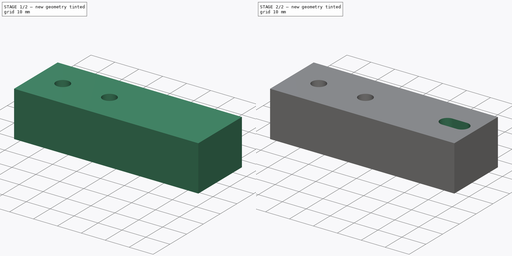
[diagram: build sequence overview — one tinted view per stage of 2, left to right]
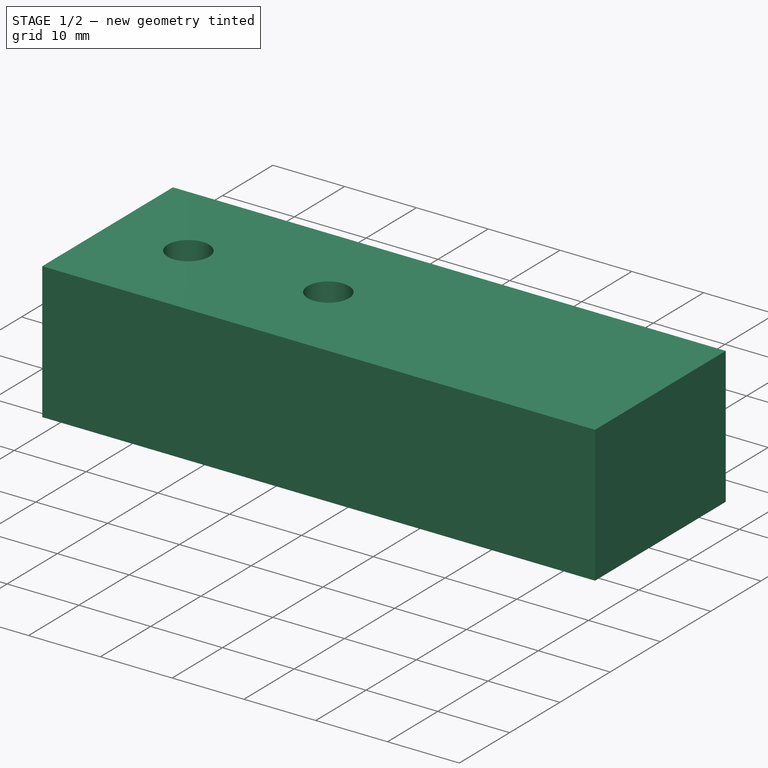
[diagram: stage 1 of 2 — iso view after this stage's code; geometry added in this stage tinted green]
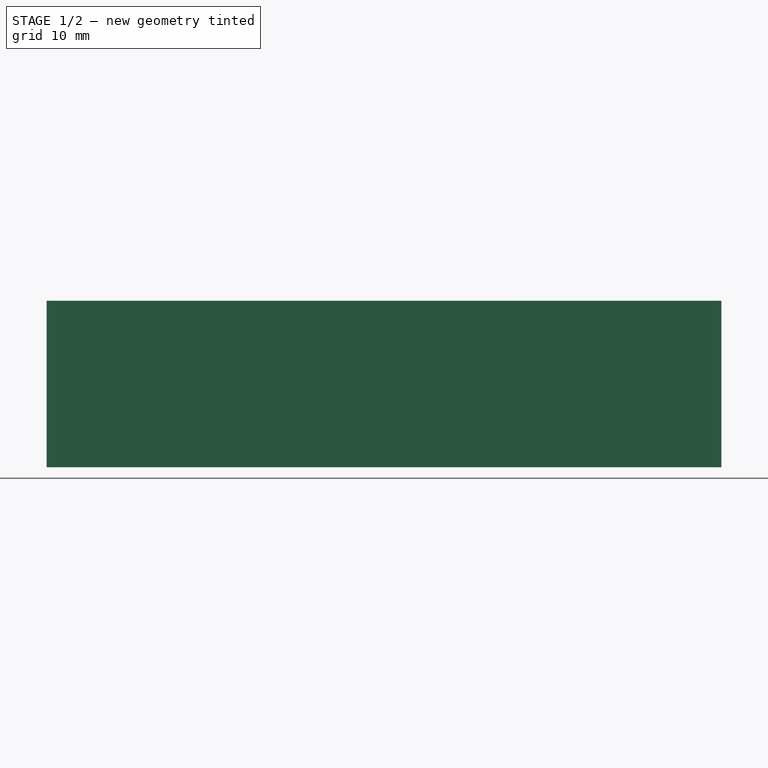
[diagram: stage 1 of 2 — front view after this stage's code; geometry added in this stage tinted green]
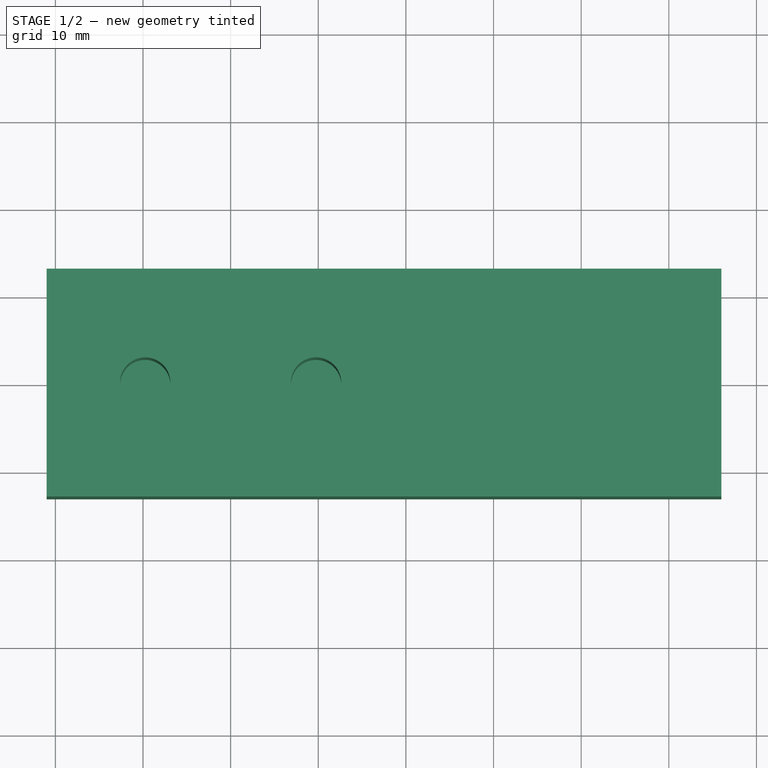
[diagram: stage 1 of 2 — top view after this stage's code; geometry added in this stage tinted green]
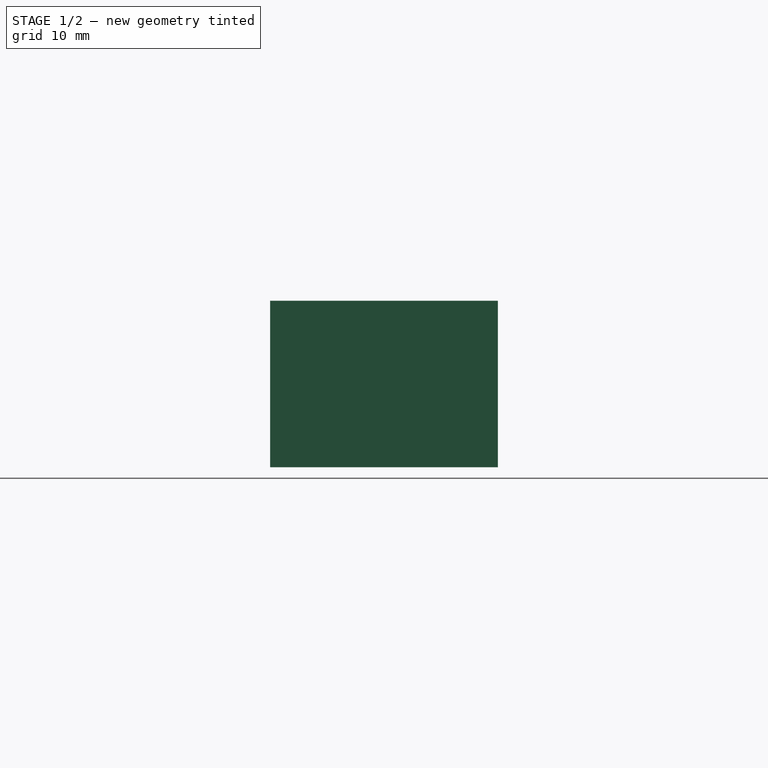
[diagram: stage 1 of 2 — right view after this stage's code; geometry added in this stage tinted green]
FCSTD DOCUMENT  (FreeCAD 1.0R39285 (Git))
Label: 02_Power_Plug_Seat
License: All rights reserved
LicenseURL: https://en.wikipedia.org/wiki/All_rights_reserved
objects: Sketcher::SketchObject×3, PartDesign::Pocket×2, PartDesign::Pad×1, PartDesign::Body×1
note: 16 computed .brp shape members not serialized (recipe doc carries the construction recipe); baked Part::Feature solids carry a one-line shape summary decoded from their .brp

FEATURE [Sketcher::SketchObject] Sketch
  ArcFitTolerance = 1e-06
  AttachmentSupport = -> [XY_Plane]
  FullyConstrained = true
  MakeInternals = false
  MapMode = 5
  sketch-geometry (4):
    g0: LineSegment StartX=-21 StartY=13 StartZ=0 EndX=-21 EndY=-13 EndZ=0
    g1: LineSegment StartX=-21 StartY=-13 StartZ=0 EndX=56 EndY=-13 EndZ=0
    g2: LineSegment StartX=56 StartY=-13 StartZ=0 EndX=56 EndY=13 EndZ=0
    g3: LineSegment StartX=56 StartY=13 StartZ=0 EndX=-21 EndY=13 EndZ=0
  constraints (12):
    c: Coincident(g0,g1)
    c: Coincident(g1,g2)
    c: Coincident(g2,g3)
    c: Coincident(g3,g0)
    c: Vertical(g0)
    c: Vertical(g2)
    c: Horizontal(g1)
    c: Horizontal(g3)
    c: Distance(g0,g2) = 77
    c: Distance(g1,g3) = 26
    c: DistanceY(g-1,g0) = 13
    c: DistanceX(g0,g-1) = 21
FEATURE [PartDesign::Pad] Pad
  Direction = (0,0,1)
  Length = 19
  Length2 = 10
  Profile = -> Sketch
  ReferenceAxis = -> Sketch [N_Axis]
  Refine = true
  Suppressed = false
  Type = 0
FEATURE [Sketcher::SketchObject] Sketch001
  ArcFitTolerance = 1e-06
  AttachmentSupport = -> [Pad]
  FullyConstrained = true
  MakeInternals = false
  MapMode = 5
  Placement = pos=(0,0,19) rot=(0,0,1;0rad)
  sketch-geometry (2):
    g0: Circle CenterX=-9.75 CenterY=0 CenterZ=0 NormalX=0 NormalY=0 NormalZ=1 AngleXU=0 Radius=2.875
    g1: Circle CenterX=9.75 CenterY=0 CenterZ=0 NormalX=0 NormalY=0 NormalZ=1 AngleXU=0 Radius=2.875
  constraints (5):
    c: Diameter(g0) = 5.75
    c: Equal(g1,g0)
    c: Horizontal(g0,g1)
    c: DistanceX(g0,g1) = 19.5
    c: Symmetric(g0,g1,g-1)
FEATURE [PartDesign::Pocket] Pocket
  BaseFeature = -> Pad
  Direction = (0,0,-1)
  Length = 17
  Length2 = 5
  Profile = -> Sketch001
  ReferenceAxis = -> Sketch001 [N_Axis]
  Refine = true
  Suppressed = false
  Type = 0
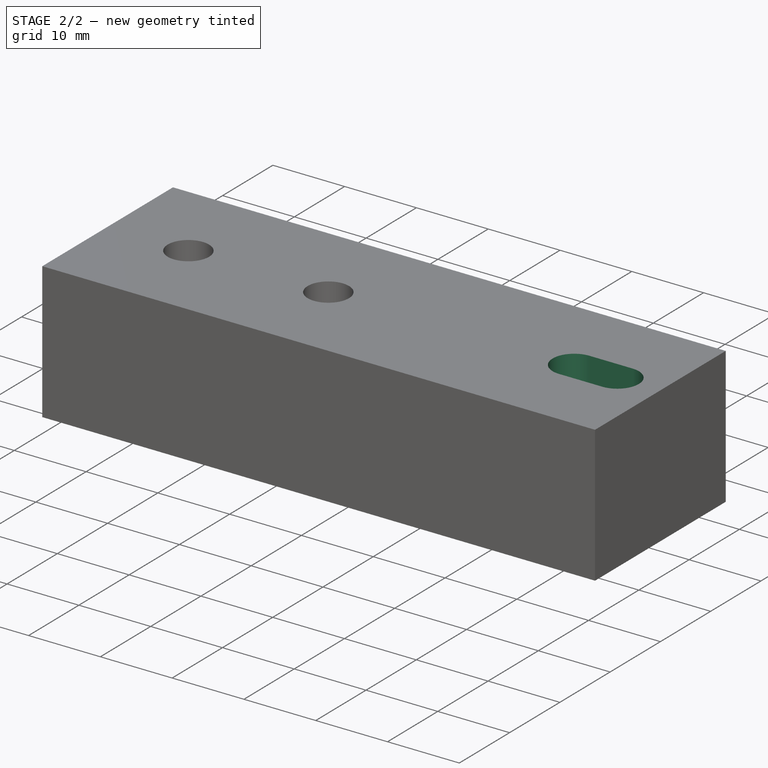
[diagram: stage 2 of 2 — iso view after this stage's code; geometry added in this stage tinted green]
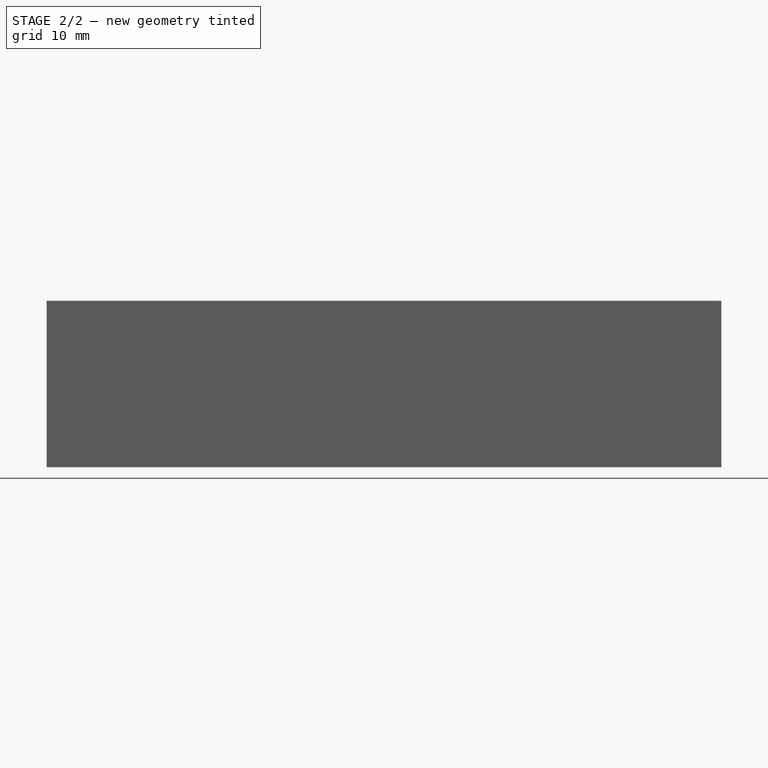
[diagram: stage 2 of 2 — front view after this stage's code; geometry added in this stage tinted green]
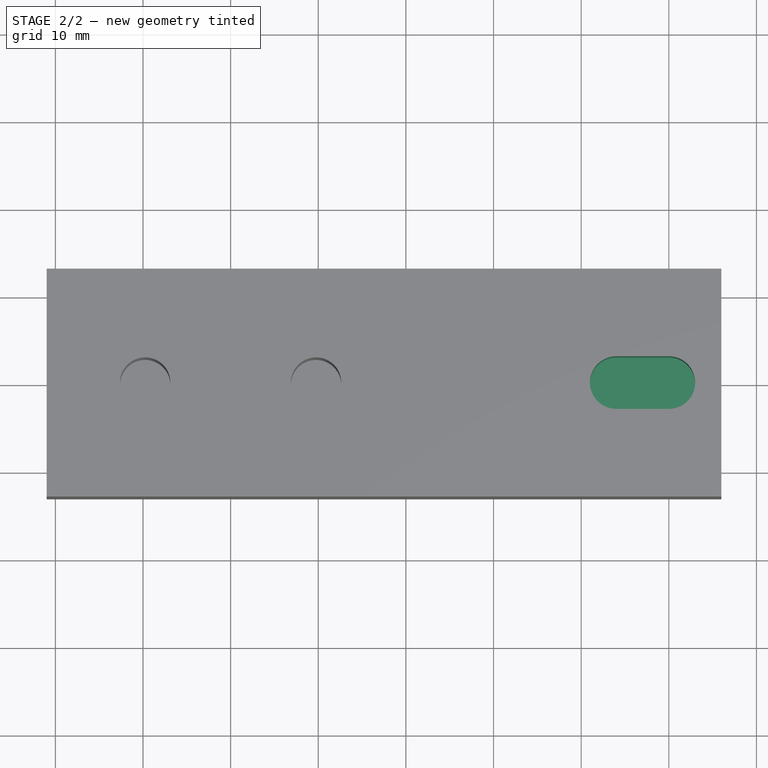
[diagram: stage 2 of 2 — top view after this stage's code; geometry added in this stage tinted green]
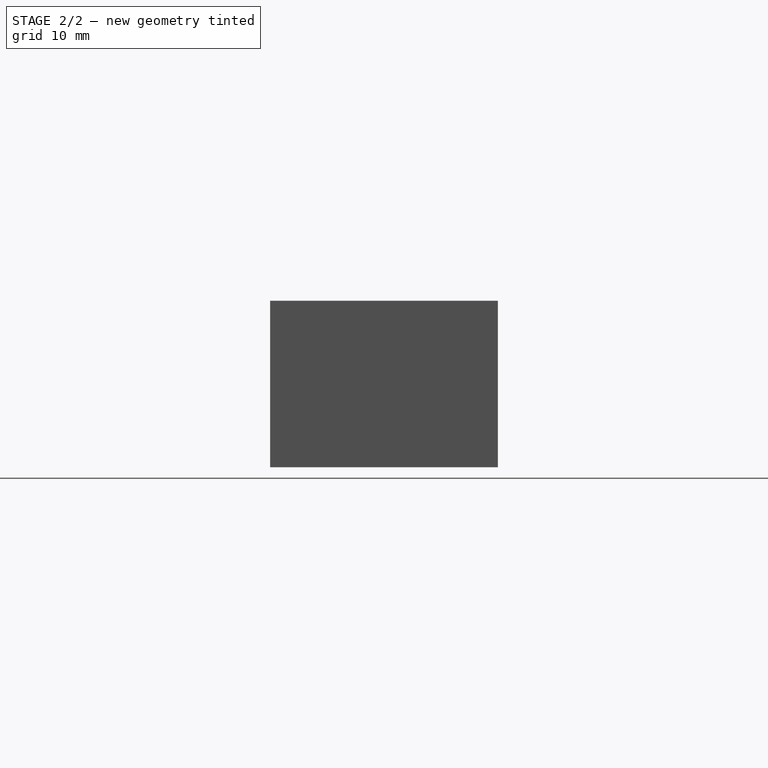
[diagram: stage 2 of 2 — right view after this stage's code; geometry added in this stage tinted green]
FEATURE [Sketcher::SketchObject] Sketch002
  ArcFitTolerance = 1e-06
  AttachmentSupport = -> [Pocket]
  ExternalGeometry = -> [Pocket]
  FullyConstrained = true
  MakeInternals = false
  MapMode = 5
  Placement = pos=(0,0,19) rot=(0,0,1;0rad)
  sketch-geometry (6):
    g0: LineSegment StartX=44 StartY=3 StartZ=0 EndX=50 EndY=3 EndZ=0
    g1: LineSegment StartX=44 StartY=-3 StartZ=0 EndX=50 EndY=-3 EndZ=0
    g2: GeomPoint [constr] X=44 Y=0 Z=0
    g3: GeomPoint [constr] X=50 Y=-2e-16 Z=0
    g4: ArcOfCircle CenterX=44 CenterY=0 CenterZ=0 NormalX=0 NormalY=0 NormalZ=1 AngleXU=0 Radius=3 StartAngle=1.5708 EndAngle=4.71239
    g5: ArcOfCircle CenterX=50 CenterY=-2e-16 CenterZ=0 NormalX=0 NormalY=0 NormalZ=1 AngleXU=0 Radius=3 StartAngle=4.71239 EndAngle=7.85398
  constraints (16):
    c: Distance(g0) = 6
    c: Horizontal(g0)
    c: Distance(g1) = 6
    c: Horizontal(g1)
    c: Vertical(g0,g1)
    c: DistanceY(g1,g0) = 6
    c: Vertical(g2,g0)
    c: Vertical(g3,g0)
    c: Coincident(g4,g2)
    c: Coincident(g4,g0)
    c: Coincident(g4,g1)
    c: Coincident(g5,g0)
    c: Coincident(g5,g1)
    c: Coincident(g5,g3)
    c: DistanceX(g3,g-3) = 6
    c: DistanceY(g2,g-1) = 0
FEATURE [PartDesign::Pocket] Pocket001
  BaseFeature = -> Pocket
  Direction = (0,0,-1)
  Length = 8
  Length2 = 5
  Profile = -> Sketch002
  ReferenceAxis = -> Sketch002 [N_Axis]
  Refine = true
  Suppressed = false
  Type = 0
FEATURE [PartDesign::Body] Body
  AllowCompound = false
  Group = -> [Sketch,Pad,Sketch001,Pocket,Sketch002,Pocket001]
  Origin = -> Origin
  Tip = -> Pocket001
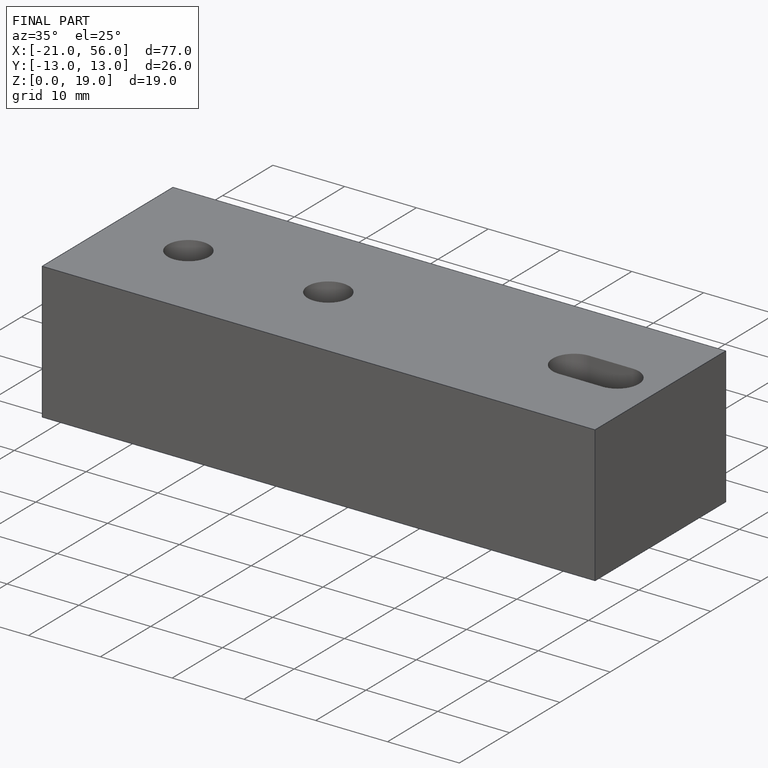
[diagram: finished part — iso view with bounding-box wireframe]
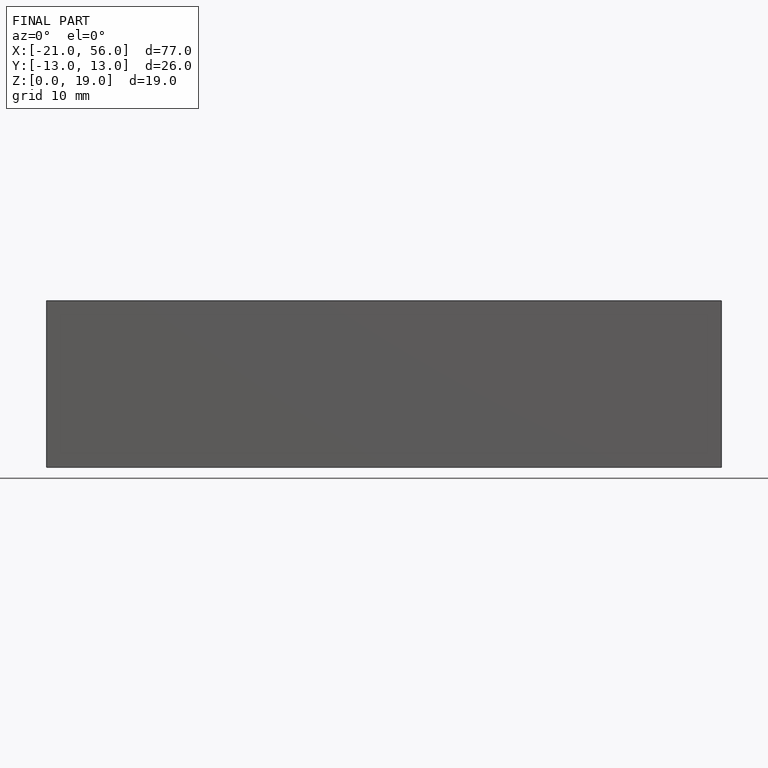
[diagram: finished part — front view with bounding-box wireframe]
